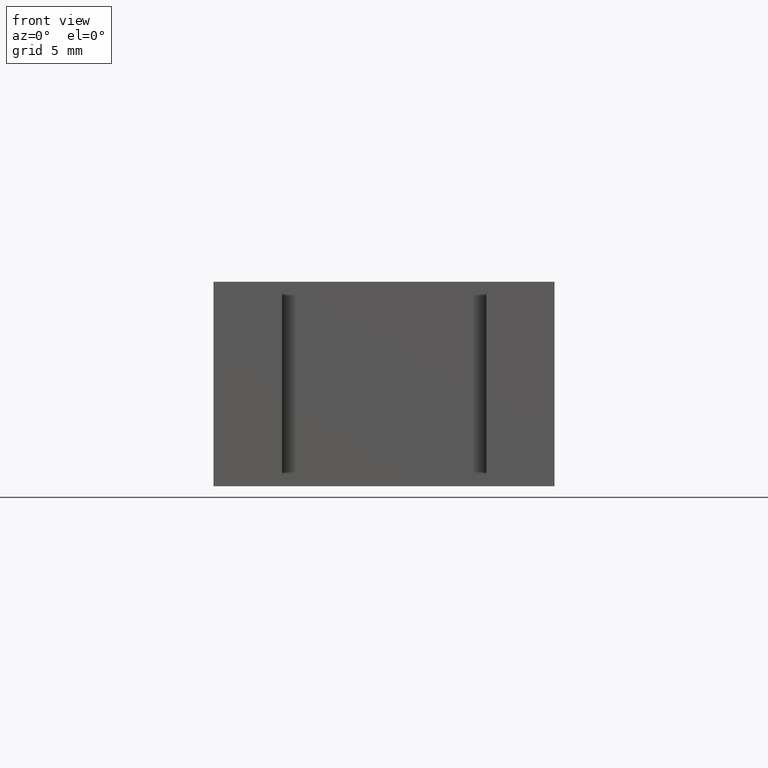
[diagram: clean part render]
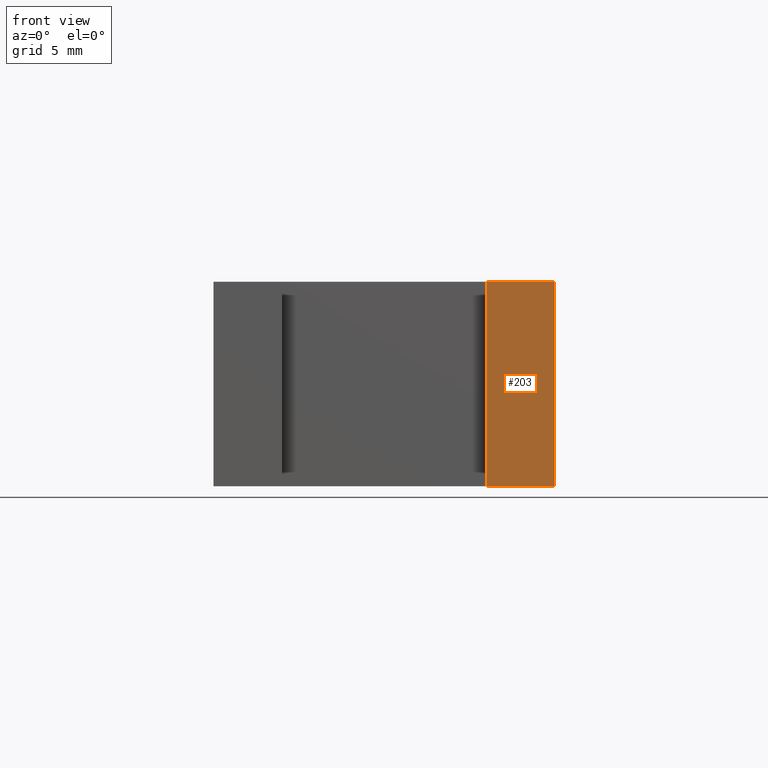
[diagram: same view with one face highlighted and labeled with its STEP entity id]
A machine part, front view. The second image highlights one B-rep face of the part: STEP entity #203.
In plain terms, the highlighted planar face has unit normal (0, -1, 0).
Its self-contained STEP definition (entity closure, byte-faithful):
#22=FACE_OUTER_BOUND('',#33,.T.);
#33=EDGE_LOOP('',(#151,#152,#153,#154));
#52=LINE('',#326,#77);
#53=LINE('',#329,#78);
#54=LINE('',#331,#79);
#55=LINE('',#332,#80);
#77=VECTOR('',#268,10.);
#78=VECTOR('',#271,10.);
#79=VECTOR('',#272,10.);
#80=VECTOR('',#273,10.);
#98=VERTEX_POINT('',#322);
#99=VERTEX_POINT('',#324);
#100=VERTEX_POINT('',#328);
#101=VERTEX_POINT('',#330);
#120=EDGE_CURVE('',#98,#99,#52,.T.);
#121=EDGE_CURVE('',#98,#100,#53,.T.);
#122=EDGE_CURVE('',#101,#99,#54,.T.);
#123=EDGE_CURVE('',#100,#101,#55,.T.);
#151=ORIENTED_EDGE('',*,*,#121,.F.);
#152=ORIENTED_EDGE('',*,*,#120,.T.);
#153=ORIENTED_EDGE('',*,*,#122,.F.);
#154=ORIENTED_EDGE('',*,*,#123,.F.);
#193=PLANE('',#237);
#203=ADVANCED_FACE('',(#22),#193,.T.);
#237=AXIS2_PLACEMENT_3D('',#327,#269,#270);
#268=DIRECTION('',(0.,0.,-1.));
#269=DIRECTION('center_axis',(0.,-1.,0.));
#270=DIRECTION('ref_axis',(-1.,0.,0.));
#271=DIRECTION('',(1.,0.,0.));
#272=DIRECTION('',(-1.,0.,0.));
#273=DIRECTION('',(0.,0.,-1.));
#322=CARTESIAN_POINT('',(20.,0.,0.));
#324=CARTESIAN_POINT('',(20.,0.,-15.));
#326=CARTESIAN_POINT('',(20.,0.,0.));
#327=CARTESIAN_POINT('Origin',(25.,0.,0.));
#328=CARTESIAN_POINT('',(25.,0.,0.));
#329=CARTESIAN_POINT('',(20.,0.,0.));
#330=CARTESIAN_POINT('',(25.,0.,-15.));
#331=CARTESIAN_POINT('',(20.,0.,-15.));
#332=CARTESIAN_POINT('',(25.,0.,0.));